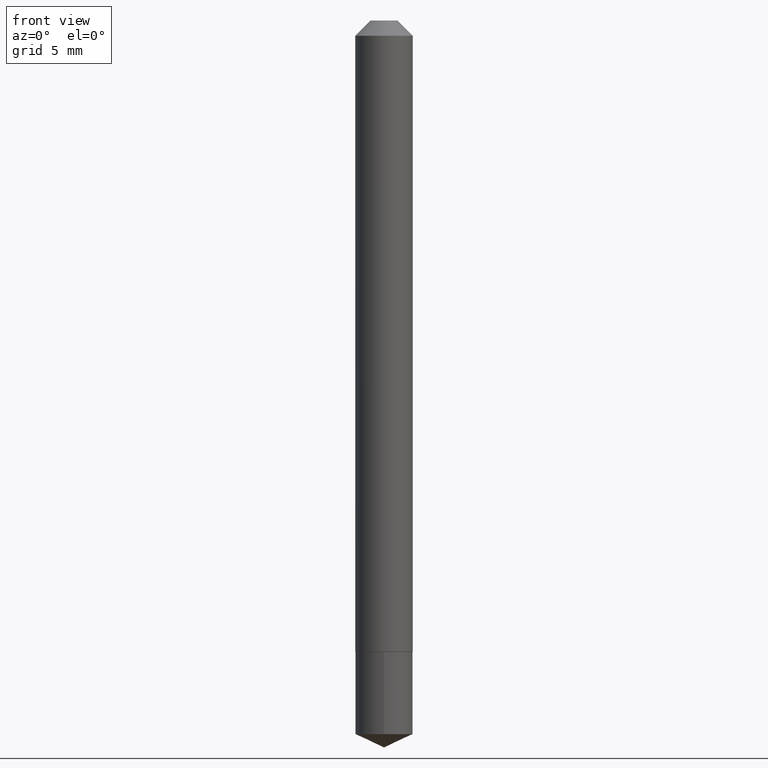
[diagram: clean part render]
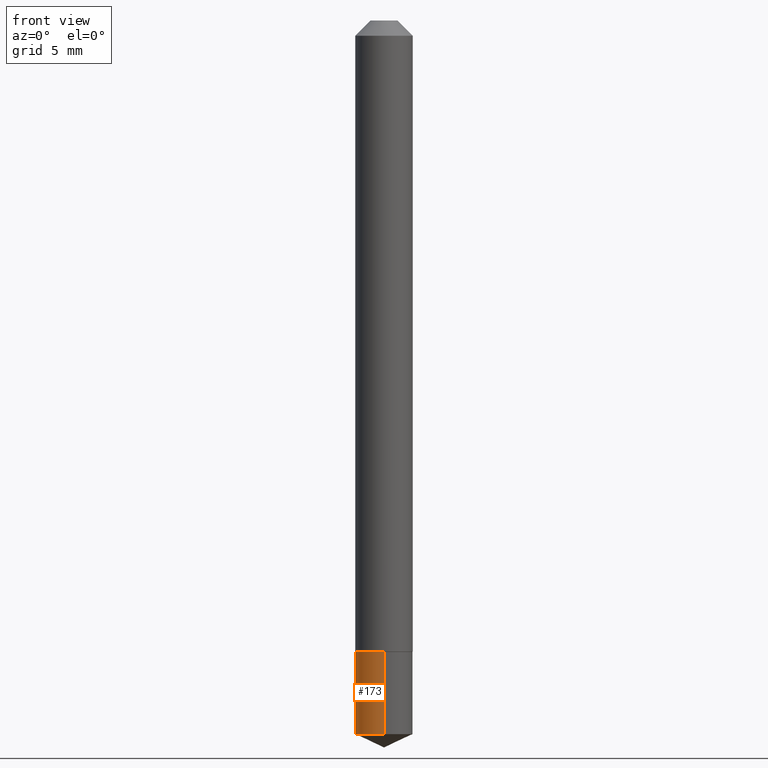
[diagram: same view with one face highlighted and labeled with its STEP entity id]
A machine part, front view. The second image highlights one B-rep face of the part: STEP entity #173.
In plain terms, the highlighted cylindrical surface (edge-blend (fillet) strip) has radius 1.4999 mm, axis along (-0, 0, 1).
Its self-contained STEP definition (entity closure, byte-faithful):
#6 = CARTESIAN_POINT ( 'NONE',  ( 3.177153072995728757E-29, -4.536132555425014733E-15, -1.299199999999999910 ) ) ;
#8 = CARTESIAN_POINT ( 'NONE',  ( -4.123439461173421824E-16, -0.05905000000000452942, -1.299199999999999688 ) ) ;
#20 = DIRECTION ( 'NONE',  ( -6.982962677686265922E-15, -1.000000000000000000, 4.626330217890369336E-15 ) ) ;
#61 = CARTESIAN_POINT ( 'NONE',  ( 4.195754854663708995E-16, 0.05904999999999546723, -1.299200000000000133 ) ) ;
#69 = DIRECTION ( 'NONE',  ( -2.445313604768416818E-29, 3.491703596105404816E-15, 1.000000000000000000 ) ) ;
#82 = CARTESIAN_POINT ( 'NONE',  ( 3.177153072995728757E-29, -4.536132555425014733E-15, -1.299199999999999910 ) ) ;
#85 = EDGE_CURVE ( 'NONE', #304, #239, #226, .T. ) ;
#101 = LINE ( 'NONE', #339, #263 ) ;
#105 = EDGE_LOOP ( 'NONE', ( #154, #256, #382, #383 ) ) ;
#107 = EDGE_CURVE ( 'NONE', #237, #299, #344, .T. ) ;
#124 = DIRECTION ( 'NONE',  ( -2.445313604768416538E-29, 3.491703596105404816E-15, 1.000000000000000000 ) ) ;
#131 = EDGE_CURVE ( 'NONE', #239, #299, #101, .T. ) ;
#139 = DIRECTION ( 'NONE',  ( -2.445313604768416538E-29, 3.491703596105404816E-15, 1.000000000000000000 ) ) ;
#140 = AXIS2_PLACEMENT_3D ( 'NONE', #82, #139, #20 ) ;
#154 = ORIENTED_EDGE ( 'NONE', *, *, #378, .F. ) ;
#158 = AXIS2_PLACEMENT_3D ( 'NONE', #6, #124, #336 ) ;
#169 = CARTESIAN_POINT ( 'NONE',  ( -4.123439461173381888E-16, -0.05905000000000514698, -1.468564532785947341 ) ) ;
#173 = ADVANCED_FACE ( 'NONE', ( #319 ), #295, .T. ) ;
#226 = CIRCLE ( 'NONE', #243, 0.05904999999999999832 ) ;
#237 = VERTEX_POINT ( 'NONE', #262 ) ;
#238 = CARTESIAN_POINT ( 'NONE',  ( 4.195754854663751396E-16, 0.05904999999999488436, -1.468564532785947785 ) ) ;
#239 = VERTEX_POINT ( 'NONE', #169 ) ;
#243 = AXIS2_PLACEMENT_3D ( 'NONE', #245, #311, #361 ) ;
#245 = CARTESIAN_POINT ( 'NONE',  ( 3.591302469182453116E-29, -5.127503303606418827E-15, -1.468564532785947563 ) ) ;
#256 = ORIENTED_EDGE ( 'NONE', *, *, #85, .T. ) ;
#262 = CARTESIAN_POINT ( 'NONE',  ( 4.195754854663750410E-16, 0.05904999999999546723, -1.299200000000000133 ) ) ;
#263 = VECTOR ( 'NONE', #69, 39.37007874015748143 ) ;
#264 = VECTOR ( 'NONE', #270, 39.37007874015748143 ) ;
#270 = DIRECTION ( 'NONE',  ( -2.445313604768416818E-29, 3.491703596105404816E-15, 1.000000000000000000 ) ) ;
#273 = LINE ( 'NONE', #61, #264 ) ;
#295 = CYLINDRICAL_SURFACE ( 'NONE', #140, 0.05904999999999999832 ) ;
#299 = VERTEX_POINT ( 'NONE', #8 ) ;
#304 = VERTEX_POINT ( 'NONE', #238 ) ;
#311 = DIRECTION ( 'NONE',  ( -2.445313604768416538E-29, 3.491703596105404816E-15, 1.000000000000000000 ) ) ;
#319 = FACE_OUTER_BOUND ( 'NONE', #105, .T. ) ;
#336 = DIRECTION ( 'NONE',  ( -6.982962677686265922E-15, -1.000000000000000000, 4.626330217890369336E-15 ) ) ;
#339 = CARTESIAN_POINT ( 'NONE',  ( -4.123439461173421824E-16, -0.05905000000000452942, -1.299199999999999688 ) ) ;
#344 = CIRCLE ( 'NONE', #158, 0.05904999999999999832 ) ;
#361 = DIRECTION ( 'NONE',  ( -6.982962677686265922E-15, -1.000000000000000000, 4.626330217890369336E-15 ) ) ;
#378 = EDGE_CURVE ( 'NONE', #304, #237, #273, .T. ) ;
#382 = ORIENTED_EDGE ( 'NONE', *, *, #131, .T. ) ;
#383 = ORIENTED_EDGE ( 'NONE', *, *, #107, .F. ) ;